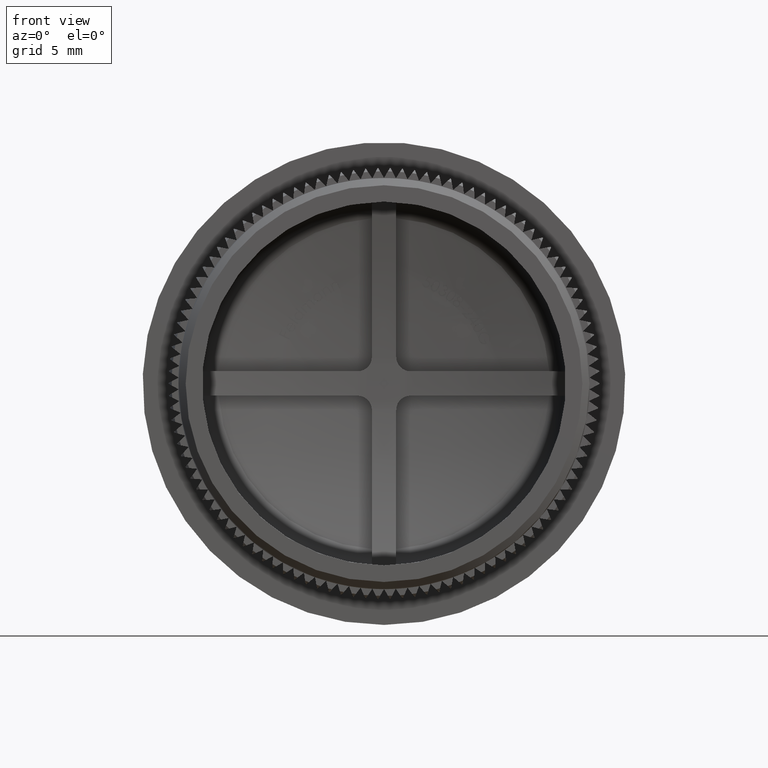
[diagram: clean part render]
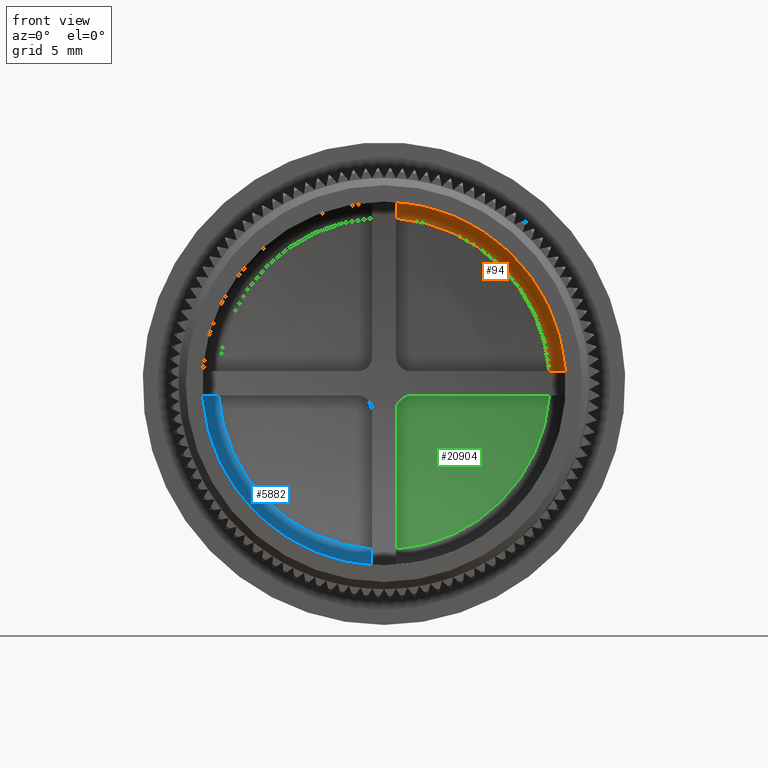
[diagram: same view with three faces highlighted in distinct colors, each labeled with its STEP entity id]
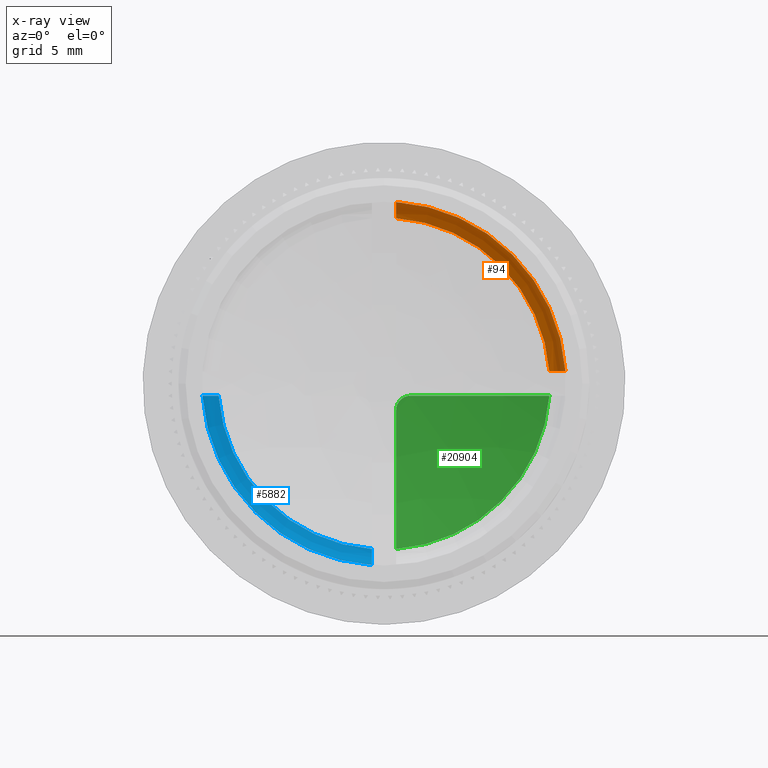
[diagram: x-ray of the same camera — body ghosted, the three highlighted faces saturated]
A machine part, front view with three faces highlighted in distinct colors.
The next image is the same camera in x-ray (body ghosted, the three faces saturated) — at least one of them is partly hidden behind the body in this view.
Their STEP definitions:

[orange] entity #94 — the highlighted toroidal blend (fillet) surface has major radius 11.2 mm and minor (blend) radius 1.5 mm.
#94 = ADVANCED_FACE ( 'NONE', ( #36401 ), #29257, .F. ) ;
#199 = CARTESIAN_POINT ( 'NONE',  ( 11.54781709785642400, 14.01282147111647800, 0.8500000000000000900 ) ) ;
#3623 = ORIENTED_EDGE ( 'NONE', *, *, #21707, .T. ) ;
#4922 = CARTESIAN_POINT ( 'NONE',  ( 0.0000000000000000000, 12.56150648874854200, 0.0000000000000000000 ) ) ;
#6231 = CARTESIAN_POINT ( 'NONE',  ( 0.8500000000000038600, 12.56150648874912800, 12.67152319178716400 ) ) ;
#6356 = DIRECTION ( 'NONE',  ( 0.0000000000000000000, 0.0000000000000000000, -1.000000000000000000 ) ) ;
#6485 = DIRECTION ( 'NONE',  ( 0.0000000000000000000, 1.000000000000000000, 0.0000000000000000000 ) ) ;
#6601 = CARTESIAN_POINT ( 'NONE',  ( 0.8500000000000036400, 12.89014255193858300, 12.67152319178706500 ) ) ;
#7965 = CARTESIAN_POINT ( 'NONE',  ( 12.45787694164839500, 13.34944539535446500, 0.8499999999999999800 ) ) ;
#8586 = ORIENTED_EDGE ( 'NONE', *, *, #17399, .F. ) ;
#8594 = ORIENTED_EDGE ( 'NONE', *, *, #18718, .T. ) ;
#10329 = CARTESIAN_POINT ( 'NONE',  ( 11.70631794095909800, 13.97153554608845400, 0.8499999999999999800 ) ) ;
#10455 = CARTESIAN_POINT ( 'NONE',  ( 11.54781709785642400, 14.01282147111647800, 0.8500000000000000900 ) ) ;
#10577 = CARTESIAN_POINT ( 'NONE',  ( 12.13366322580456300, 13.72280367907227100, 0.8499999999999999800 ) ) ;
#10817 = CARTESIAN_POINT ( 'NONE',  ( 12.67152319178716400, 12.56150648874854200, 0.8500000000000000900 ) ) ;
#11521 = CIRCLE ( 'NONE', #36598, 12.69999999999999900 ) ;
#11923 = CARTESIAN_POINT ( 'NONE',  ( 0.8500000000000038600, 13.21886430526882900, 12.55907345589900000 ) ) ;
#12040 = CARTESIAN_POINT ( 'NONE',  ( 0.0000000000000000000, 12.56150648874854200, 0.0000000000000000000 ) ) ;
#14761 = CARTESIAN_POINT ( 'NONE',  ( 0.8500000000000036400, 13.73908920969577200, 12.15592177295073400 ) ) ;
#16629 = CARTESIAN_POINT ( 'NONE',  ( 0.8500000000000038600, 12.56150648874912800, 12.67152319178716400 ) ) ;
#17399 = EDGE_CURVE ( 'NONE', #22289, #34706, #28398, .T. ) ;
#17605 = CARTESIAN_POINT ( 'NONE',  ( 0.8500000000000035300, 14.01282147111647800, 11.54781709785642400 ) ) ;
#17683 = AXIS2_PLACEMENT_3D ( 'NONE', #24631, #33123, #35851 ) ;
#18718 = EDGE_CURVE ( 'NONE', #22289, #35558, #30419, .T. ) ;
#19354 = DIRECTION ( 'NONE',  ( 0.0000000000000000000, 0.0000000000000000000, -1.000000000000000000 ) ) ;
#21707 = EDGE_CURVE ( 'NONE', #32365, #34706, #23912, .T. ) ;
#21930 = CARTESIAN_POINT ( 'NONE',  ( 12.64391189219943900, 12.89127318618569300, 0.8500000000000000900 ) ) ;
#22063 = CARTESIAN_POINT ( 'NONE',  ( 12.25713465899794300, 13.60848699333171800, 0.8500000000000000900 ) ) ;
#22289 = VERTEX_POINT ( 'NONE', #199 ) ;
#23737 = ORIENTED_EDGE ( 'NONE', *, *, #30363, .F. ) ;
#23912 = B_SPLINE_CURVE_WITH_KNOTS ( 'NONE', 3,
 ( #6231, #6601, #11923, #14761, #34482, #17605 ),
 .UNSPECIFIED., .F., .F.,
 ( 4, 2, 4 ),
 ( 0.005174077187314348100, 0.006156903262832058200, 0.007139729338349767500 ),
 .UNSPECIFIED. ) ;
#24508 = CARTESIAN_POINT ( 'NONE',  ( 12.67152319178716400, 12.72548662357592500, 0.8500000000000000900 ) ) ;
#24631 = CARTESIAN_POINT ( 'NONE',  ( 0.0000000000000000000, 14.01282147111647400, 0.0000000000000000000 ) ) ;
#24788 = AXIS2_PLACEMENT_3D ( 'NONE', #4922, #33400, #19354 ) ;
#27700 = CARTESIAN_POINT ( 'NONE',  ( 12.53773012660812800, 13.20143403130718300, 0.8500000000000000900 ) ) ;
#28398 = CIRCLE ( 'NONE', #17683, 11.57905780819602400 ) ;
#29257 = TOROIDAL_SURFACE ( 'NONE', #24788, 11.19999999999999900, 1.500000000000000000 ) ;
#30015 = CARTESIAN_POINT ( 'NONE',  ( 11.86011261550663900, 13.90311442515942800, 0.8500000000000000900 ) ) ;
#30363 = EDGE_CURVE ( 'NONE', #32365, #35558, #11521, .T. ) ;
#30419 = B_SPLINE_CURVE_WITH_KNOTS ( 'NONE', 3,
 ( #10455, #10329, #30015, #10577, #22063, #7965, #27700, #21930, #24508, #10817 ),
 .UNSPECIFIED., .F., .F.,
 ( 4, 2, 2, 2, 4 ),
 ( 0.002253852550823673300, 0.002745216780369303900, 0.003236581009914934000, 0.003727945239460564500, 0.004219309469006195100 ),
 .UNSPECIFIED. ) ;
#32365 = VERTEX_POINT ( 'NONE', #16629 ) ;
#32905 = EDGE_LOOP ( 'NONE', ( #23737, #3623, #8586, #8594 ) ) ;
#33123 = DIRECTION ( 'NONE',  ( -0.0000000000000000000, -1.000000000000000000, -0.0000000000000000000 ) ) ;
#33400 = DIRECTION ( 'NONE',  ( -0.0000000000000000000, -1.000000000000000000, -0.0000000000000000000 ) ) ;
#34063 = CARTESIAN_POINT ( 'NONE',  ( 0.8500000000000035300, 14.01282147111647800, 11.54781709785642400 ) ) ;
#34482 = CARTESIAN_POINT ( 'NONE',  ( 0.8500000000000037500, 13.92973499406397200, 11.86679448916633800 ) ) ;
#34706 = VERTEX_POINT ( 'NONE', #34063 ) ;
#35516 = CARTESIAN_POINT ( 'NONE',  ( 12.67152319178716400, 12.56150648874854200, 0.8500000000000000900 ) ) ;
#35558 = VERTEX_POINT ( 'NONE', #35516 ) ;
#35851 = DIRECTION ( 'NONE',  ( 0.0000000000000000000, 0.0000000000000000000, -1.000000000000000000 ) ) ;
#36401 = FACE_OUTER_BOUND ( 'NONE', #32905, .T. ) ;
#36598 = AXIS2_PLACEMENT_3D ( 'NONE', #12040, #6485, #6356 ) ;

[blue] entity #5882 — the highlighted toroidal blend (fillet) surface has major radius 11.2 mm and minor (blend) radius 1.5 mm.
#211 = ORIENTED_EDGE ( 'NONE', *, *, #15054, .F. ) ;
#2120 = EDGE_LOOP ( 'NONE', ( #211, #6814, #27976, #15713 ) ) ;
#3015 = VERTEX_POINT ( 'NONE', #24865 ) ;
#4169 = CARTESIAN_POINT ( 'NONE',  ( -11.54781709785642400, 14.01282147111647800, -0.8500000000000000900 ) ) ;
#5407 = VERTEX_POINT ( 'NONE', #6170 ) ;
#5882 = ADVANCED_FACE ( 'NONE', ( #29724 ), #14339, .F. ) ;
#6170 = CARTESIAN_POINT ( 'NONE',  ( -11.54781709785642400, 14.01282147111647800, -0.8500000000000000900 ) ) ;
#6814 = ORIENTED_EDGE ( 'NONE', *, *, #26532, .T. ) ;
#7182 = CARTESIAN_POINT ( 'NONE',  ( -0.8499999999999962000, 13.21789943324851900, -12.55982423423951600 ) ) ;
#7617 = CARTESIAN_POINT ( 'NONE',  ( -12.67152319178716600, 12.56150648874854200, -0.8499999999999999800 ) ) ;
#7823 = CARTESIAN_POINT ( 'NONE',  ( 0.0000000000000000000, 12.56150648874854200, 0.0000000000000000000 ) ) ;
#9902 = CARTESIAN_POINT ( 'NONE',  ( -0.8499999999999958700, 12.88928348237396500, -12.67152319178714100 ) ) ;
#11112 = CARTESIAN_POINT ( 'NONE',  ( 0.0000000000000000000, 14.01282147111647400, 0.0000000000000000000 ) ) ;
#12671 = CIRCLE ( 'NONE', #35069, 12.69999999999999900 ) ;
#13583 = DIRECTION ( 'NONE',  ( 0.0000000000000000000, 0.0000000000000000000, -1.000000000000000000 ) ) ;
#13806 = CARTESIAN_POINT ( 'NONE',  ( 0.0000000000000000000, 12.56150648874854200, 0.0000000000000000000 ) ) ;
#14339 = TOROIDAL_SURFACE ( 'NONE', #28929, 11.19999999999999900, 1.500000000000000000 ) ;
#14465 = EDGE_CURVE ( 'NONE', #5407, #35669, #32498, .T. ) ;
#15054 = EDGE_CURVE ( 'NONE', #23049, #35669, #12671, .T. ) ;
#15164 = CARTESIAN_POINT ( 'NONE',  ( -12.25783978145849100, 13.60777213939289600, -0.8500000000000000900 ) ) ;
#15539 = CARTESIAN_POINT ( 'NONE',  ( -12.45851490764068400, 13.34842579362370800, -0.8499999999999999800 ) ) ;
#15713 = ORIENTED_EDGE ( 'NONE', *, *, #14465, .T. ) ;
#16056 = CIRCLE ( 'NONE', #16727, 11.57905780819602400 ) ;
#16663 = DIRECTION ( 'NONE',  ( -0.0000000000000000000, -1.000000000000000000, -0.0000000000000000000 ) ) ;
#16727 = AXIS2_PLACEMENT_3D ( 'NONE', #11112, #19376, #13583 ) ;
#17881 = CARTESIAN_POINT ( 'NONE',  ( -11.85797548685905600, 13.90442577109271800, -0.8500000000000000900 ) ) ;
#18360 = CARTESIAN_POINT ( 'NONE',  ( -12.64407796977995300, 12.89059904180715300, -0.8500000000000000900 ) ) ;
#19181 = DIRECTION ( 'NONE',  ( 0.0000000000000000000, 0.0000000000000000000, -1.000000000000000000 ) ) ;
#19376 = DIRECTION ( 'NONE',  ( -0.0000000000000000000, -1.000000000000000000, -0.0000000000000000000 ) ) ;
#20843 = CARTESIAN_POINT ( 'NONE',  ( -12.67152319178719500, 12.72566497135670500, -0.8500000000000000900 ) ) ;
#20907 = CARTESIAN_POINT ( 'NONE',  ( -0.8499999999999960900, 13.74007135998066300, -12.15515760460559000 ) ) ;
#21208 = CARTESIAN_POINT ( 'NONE',  ( -12.67152319178716600, 12.56150648874854200, -0.8499999999999999800 ) ) ;
#22034 = DIRECTION ( 'NONE',  ( 0.0000000000000000000, 1.000000000000000000, 0.0000000000000000000 ) ) ;
#22461 = CARTESIAN_POINT ( 'NONE',  ( -0.8499999999999960900, 12.56150648874865500, -12.67152319178716400 ) ) ;
#23049 = VERTEX_POINT ( 'NONE', #22461 ) ;
#23210 = B_SPLINE_CURVE_WITH_KNOTS ( 'NONE', 3,
 ( #23599, #9902, #7182, #20907, #31974, #29587 ),
 .UNSPECIFIED., .F., .F.,
 ( 4, 2, 4 ),
 ( 0.008256782576069812300, 0.009238957035889571600, 0.01022113149570933300 ),
 .UNSPECIFIED. ) ;
#23599 = CARTESIAN_POINT ( 'NONE',  ( -0.8499999999999960900, 12.56150648874865500, -12.67152319178716400 ) ) ;
#24865 = CARTESIAN_POINT ( 'NONE',  ( -0.8499999999999965400, 14.01282147111647800, -11.54781709785642400 ) ) ;
#25506 = DIRECTION ( 'NONE',  ( 0.0000000000000000000, 0.0000000000000000000, -1.000000000000000000 ) ) ;
#26532 = EDGE_CURVE ( 'NONE', #23049, #3015, #23210, .T. ) ;
#27976 = ORIENTED_EDGE ( 'NONE', *, *, #28224, .F. ) ;
#28224 = EDGE_CURVE ( 'NONE', #5407, #3015, #16056, .T. ) ;
#28929 = AXIS2_PLACEMENT_3D ( 'NONE', #13806, #16663, #25506 ) ;
#29587 = CARTESIAN_POINT ( 'NONE',  ( -0.8499999999999965400, 14.01282147111647800, -11.54781709785642400 ) ) ;
#29724 = FACE_OUTER_BOUND ( 'NONE', #2120, .T. ) ;
#31974 = CARTESIAN_POINT ( 'NONE',  ( -0.8499999999999965400, 13.93019917349329100, -11.86501245737585800 ) ) ;
#32401 = CARTESIAN_POINT ( 'NONE',  ( -11.70832525926057600, 13.97101268456115600, -0.8499999999999999800 ) ) ;
#32498 = B_SPLINE_CURVE_WITH_KNOTS ( 'NONE', 3,
 ( #4169, #32401, #17881, #35247, #15164, #15539, #34888, #18360, #20843, #21208 ),
 .UNSPECIFIED., .F., .F.,
 ( 4, 2, 2, 2, 4 ),
 ( 0.008565166992671432000, 0.009056013392078385300, 0.009546859791485340400, 0.01003770619089229500, 0.01052855259029924900 ),
 .UNSPECIFIED. ) ;
#34888 = CARTESIAN_POINT ( 'NONE',  ( -12.53792528061464800, 13.20105236312393500, -0.8500000000000000900 ) ) ;
#35069 = AXIS2_PLACEMENT_3D ( 'NONE', #7823, #22034, #19181 ) ;
#35247 = CARTESIAN_POINT ( 'NONE',  ( -12.13457039605782300, 13.72230262762543500, -0.8499999999999999800 ) ) ;
#35669 = VERTEX_POINT ( 'NONE', #7617 ) ;

[green] entity #20904 — the highlighted spherical surface has radius 45.8204 mm.
#2104 = DIRECTION ( 'NONE',  ( 0.0000000000000000000, 0.0000000000000000000, -1.000000000000000000 ) ) ;
#2157 = CARTESIAN_POINT ( 'NONE',  ( 0.8500000000000003100, 15.45474672470686900, -1.850000000000000300 ) ) ;
#2529 = CARTESIAN_POINT ( 'NONE',  ( 1.588453064328347900, 15.46426718836329400, -0.8759566691318310100 ) ) ;
#3408 = AXIS2_PLACEMENT_3D ( 'NONE', #4990, #4872, #19056 ) ;
#4872 = DIRECTION ( 'NONE',  ( -1.000000000000000000, -0.0000000000000000000, -3.209998865743108900E-016 ) ) ;
#4990 = CARTESIAN_POINT ( 'NONE',  ( 0.8499999999999997600, -30.32041666666353300, 2.728499035881642000E-016 ) ) ;
#5498 = VERTEX_POINT ( 'NONE', #8778 ) ;
#6839 = VERTEX_POINT ( 'NONE', #30423 ) ;
#7829 = DIRECTION ( 'NONE',  ( 0.0000000000000000000, 0.0000000000000000000, 1.000000000000000000 ) ) ;
#7945 = CARTESIAN_POINT ( 'NONE',  ( 1.235414748818011400, 15.47148137955113100, -1.050438448951353000 ) ) ;
#8778 = CARTESIAN_POINT ( 'NONE',  ( 1.850000000000000300, 15.45474672470686900, -0.8500000000000000900 ) ) ;
#9704 = ORIENTED_EDGE ( 'NONE', *, *, #23902, .T. ) ;
#10057 = CIRCLE ( 'NONE', #29997, 45.81253194821977100 ) ;
#10427 = ORIENTED_EDGE ( 'NONE', *, *, #15029, .T. ) ;
#10919 = CARTESIAN_POINT ( 'NONE',  ( 0.0000000000000000000, -30.32041666666353300, 0.0000000000000000000 ) ) ;
#12854 = DIRECTION ( 'NONE',  ( -1.000000000000000000, 4.468152303754466200E-015, -9.466424372361156500E-018 ) ) ;
#13324 = CARTESIAN_POINT ( 'NONE',  ( 0.8500000000000035300, 14.01282147111647800, -11.54781709785642400 ) ) ;
#13379 = CARTESIAN_POINT ( 'NONE',  ( 1.850000000000000300, 15.45474672470686900, -0.8500000000000000900 ) ) ;
#14434 = ORIENTED_EDGE ( 'NONE', *, *, #18421, .T. ) ;
#15029 = EDGE_CURVE ( 'NONE', #25889, #18338, #20190, .T. ) ;
#16184 = DIRECTION ( 'NONE',  ( -0.0000000000000000000, -1.000000000000000000, -0.0000000000000000000 ) ) ;
#16736 = CARTESIAN_POINT ( 'NONE',  ( 1.718015818281493700, 15.46008085610235500, -0.8500000000000002000 ) ) ;
#18338 = VERTEX_POINT ( 'NONE', #13324 ) ;
#18421 = EDGE_CURVE ( 'NONE', #18338, #6839, #18656, .T. ) ;
#18656 = CIRCLE ( 'NONE', #26437, 11.57905780819602400 ) ;
#18708 = AXIS2_PLACEMENT_3D ( 'NONE', #10919, #7829, #33227 ) ;
#19056 = DIRECTION ( 'NONE',  ( 3.218584286602793000E-016, 1.953869990455342700E-014, -1.000000000000000000 ) ) ;
#20190 = CIRCLE ( 'NONE', #3408, 45.81253194821977100 ) ;
#20904 = ADVANCED_FACE ( 'NONE', ( #35365 ), #23892, .F. ) ;
#20917 = EDGE_CURVE ( 'NONE', #5498, #25889, #35918, .T. ) ;
#21511 = CARTESIAN_POINT ( 'NONE',  ( 7.795711531090407900E-018, -30.32041666666353300, -0.8500000000000000900 ) ) ;
#23892 = SPHERICAL_SURFACE ( 'NONE', #18708, 45.82041666666353300 ) ;
#23902 = EDGE_CURVE ( 'NONE', #6839, #5498, #10057, .T. ) ;
#25889 = VERTEX_POINT ( 'NONE', #27776 ) ;
#26437 = AXIS2_PLACEMENT_3D ( 'NONE', #35672, #16184, #2104 ) ;
#27269 = EDGE_LOOP ( 'NONE', ( #9704, #36597, #10427, #14434 ) ) ;
#27776 = CARTESIAN_POINT ( 'NONE',  ( 0.8500000000000003100, 15.45474672470686900, -1.850000000000000300 ) ) ;
#27792 = CARTESIAN_POINT ( 'NONE',  ( 0.9586169661904784300, 15.47148945971774100, -1.327036228234193400 ) ) ;
#29711 = DIRECTION ( 'NONE',  ( -9.171425330694596500E-018, -0.0000000000000000000, 1.000000000000000000 ) ) ;
#29997 = AXIS2_PLACEMENT_3D ( 'NONE', #21511, #29711, #12854 ) ;
#30423 = CARTESIAN_POINT ( 'NONE',  ( 11.54781709785642400, 14.01282147111647800, -0.8500000000000000900 ) ) ;
#33227 = DIRECTION ( 'NONE',  ( 1.000000000000000000, 0.0000000000000000000, 0.0000000000000000000 ) ) ;
#35365 = FACE_OUTER_BOUND ( 'NONE', #27269, .T. ) ;
#35672 = CARTESIAN_POINT ( 'NONE',  ( 0.0000000000000000000, 14.01282147111647400, 0.0000000000000000000 ) ) ;
#35918 = B_SPLINE_CURVE_WITH_KNOTS ( 'NONE', 3,
 ( #13379, #16736, #2529, #36221, #7945, #27792, #36098, #2157 ),
 .UNSPECIFIED., .F., .F.,
 ( 4, 2, 2, 4 ),
 ( 0.0000000000000000000, 0.0003906582634203056400, 0.0007813165268406112800, 0.001562633053681222100 ),
 .UNSPECIFIED. ) ;
#36098 = CARTESIAN_POINT ( 'NONE',  ( 0.8500000000000007500, 15.46541504947750700, -1.586030102979650200 ) ) ;
#36221 = CARTESIAN_POINT ( 'NONE',  ( 1.346343942393920700, 15.46999847083387000, -0.9762163965805433800 ) ) ;
#36597 = ORIENTED_EDGE ( 'NONE', *, *, #20917, .T. ) ;